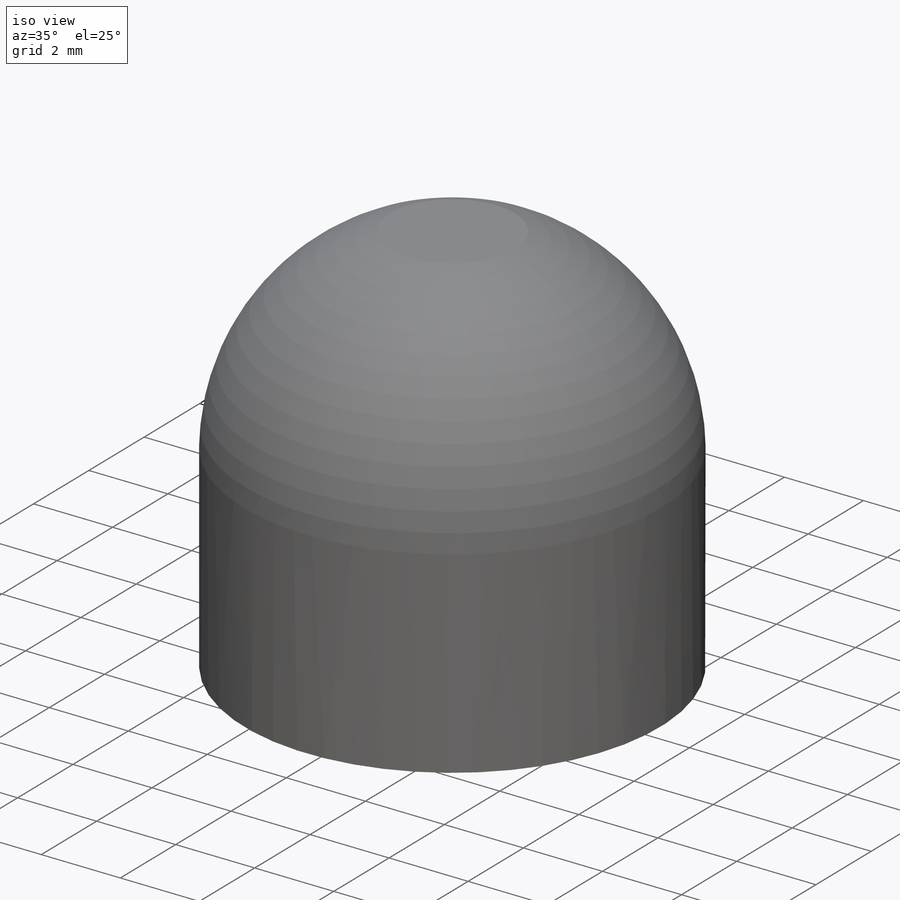
[diagram: iso view]
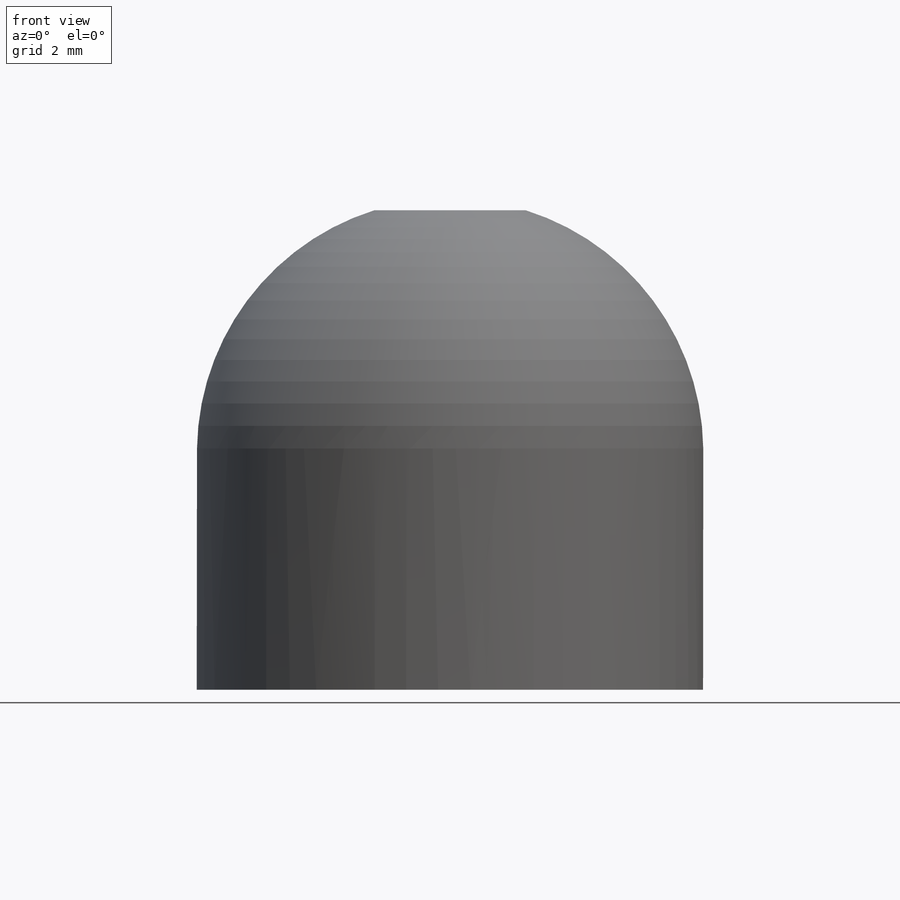
[diagram: front view]
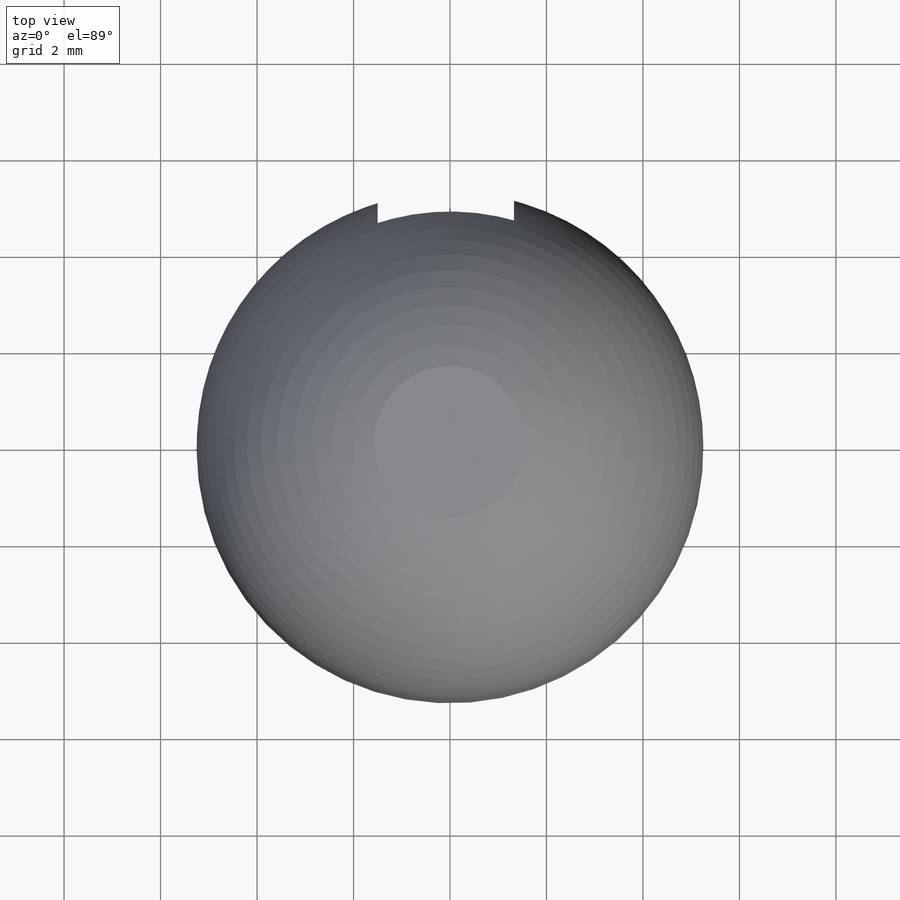
[diagram: top view]
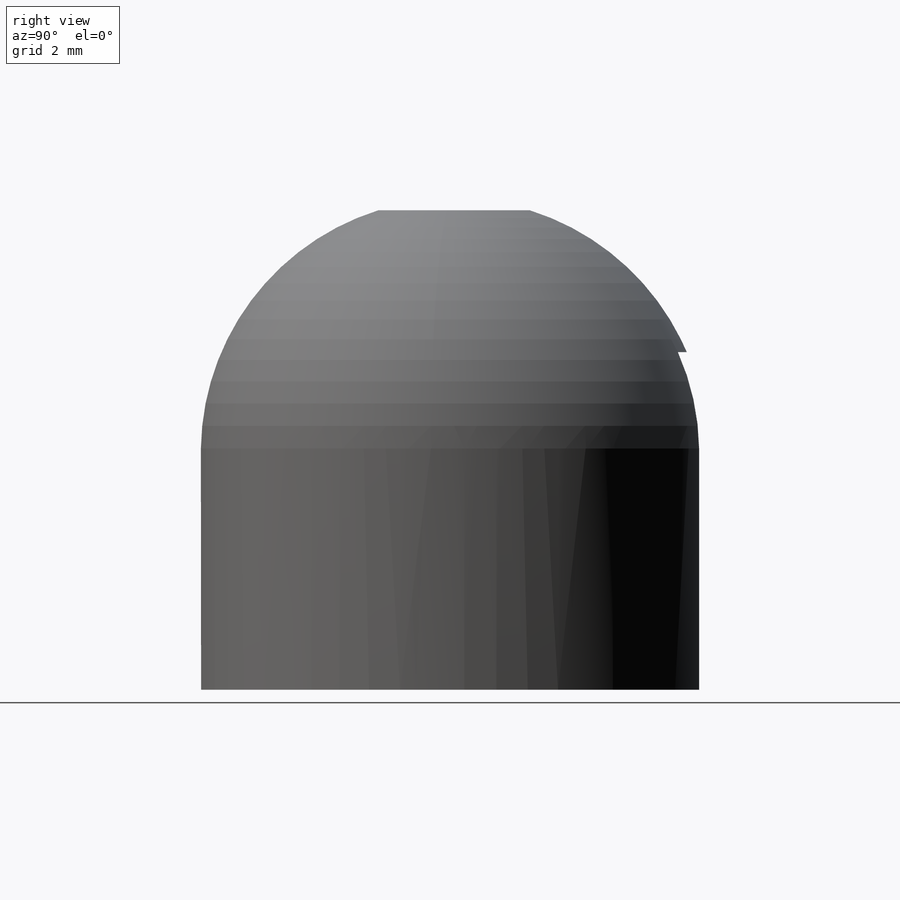
[diagram: right view]
SOLIDWORKS PART (.sldprt)
format: sldprt  version: not decoded by parser v0  size: 436,736 bytes
history: native  units: mm
features: sketch x5, cut_extrude x3, plane x2, material x1, extrude x1, revolve x1 (+13 scaffold rows collapsed)
feature tree (26):
  scaffold x13  (default folders/planes/origin — collapsed)
  material  "Material <not specified>"
  sketch  "Sketch1"  dims[D1=10.5mm D2=9.0mm]
  extrude  "Boss-Extrude1"  Depth=5mm
  sketch  "Sketch2"  dims[D1=2.0mm]
  cut_extrude  "Cut-Extrude1"  Depth=5mm
  sketch  "Sketch4"  dims[c1.D1=5.18mm c1.D2=5.18mm c1.D3=8.76mm c2.D1=0.0mm c2.D3=5.25mm]
  revolve  "Revolve1"  Angle=360deg
  plane  "Plane1"  Offset=0mm
  sketch  "Sketch5"  dims[D1=3.0mm D2=3.0mm]
  cut_extrude  "Cut-Extrude2"  Depth=2mm
  plane  "Plane2"  Offset=5.29mm
  sketch  "Sketch6"  dims[D1=~2.038343mm]
  cut_extrude  "Cut-Extrude4"  Depth=0.35mm
decode coverage: 10 of 10 modeling features carry decoded parameters
note: ~ marks probable driven/reference dimensions
note: suppression state not decoded; provenance and decode notes live in map.json
